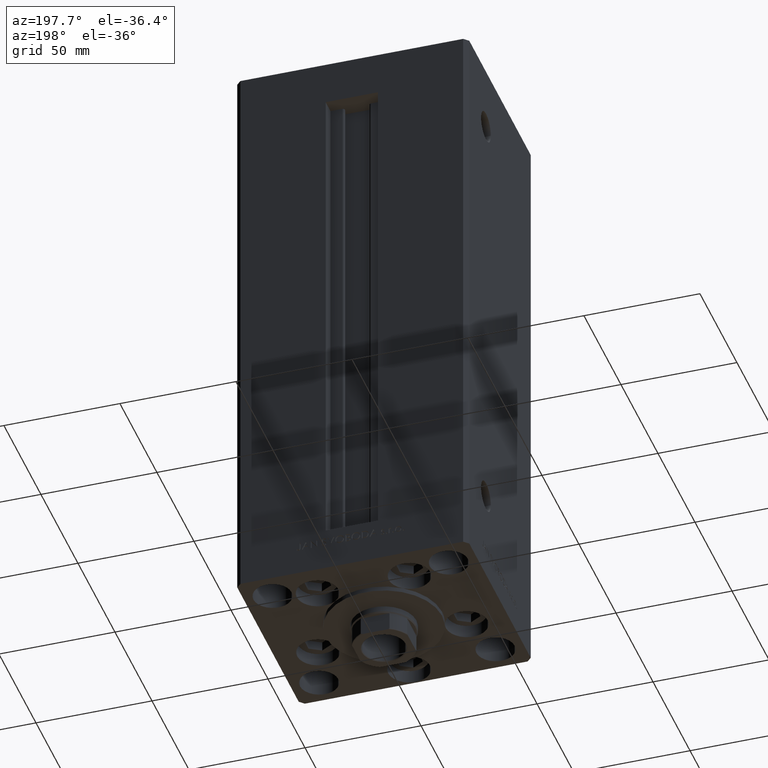
[diagram: clean part render]
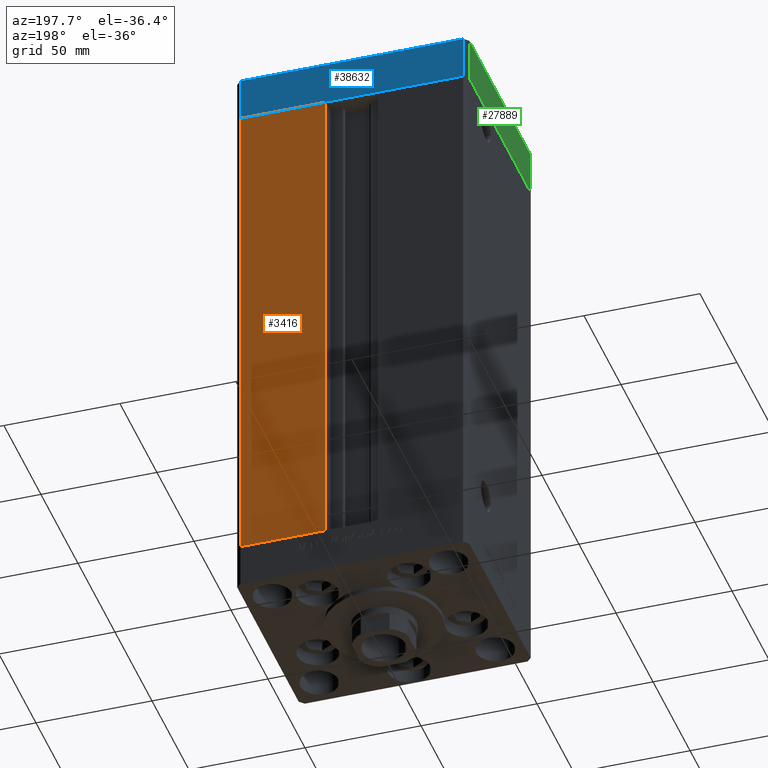
[diagram: same view with three faces highlighted in distinct colors, each labeled with its STEP entity id]
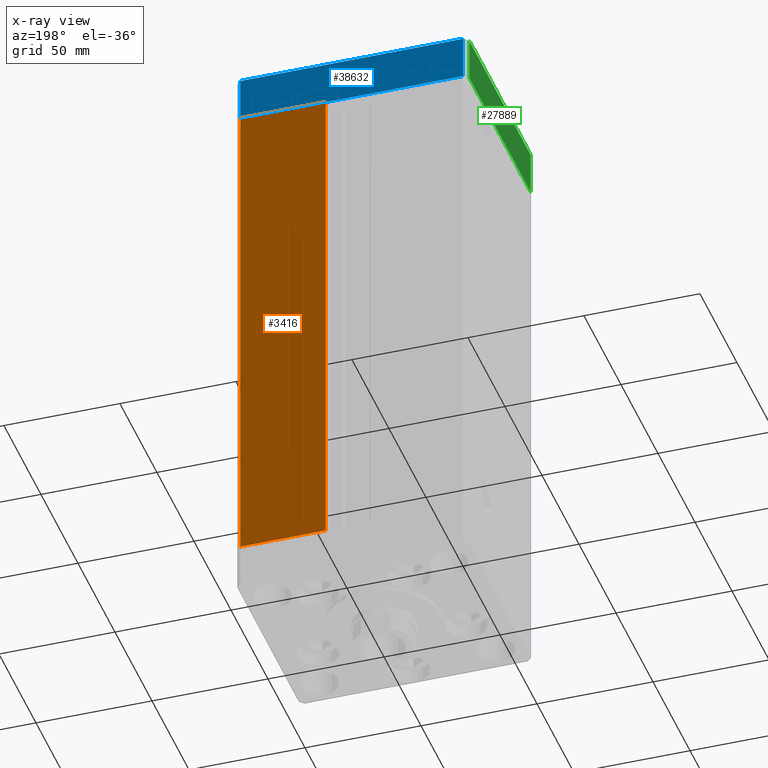
[diagram: x-ray of the same camera — body ghosted, the three highlighted faces saturated]
A machine part, auxiliary view with three faces highlighted in distinct colors.
The next image is the same camera in x-ray (body ghosted, the three faces saturated) — at least one of them is partly hidden behind the body in this view.
Their STEP definitions:

[orange] entity #3416 — the highlighted planar face has unit normal (0, -1, 0).
#628 = DIRECTION ( 'NONE',  ( 1.000000000000000000, 0.000000000000000000, 0.000000000000000000 ) ) ;
#1307 = LINE ( 'NONE', #13210, #27316 ) ;
#1503 = CARTESIAN_POINT ( 'NONE',  ( 11.24999999999999112, 43.50000000000000000, 218.5000000000000000 ) ) ;
#2553 = VERTEX_POINT ( 'NONE', #15337 ) ;
#2596 = EDGE_CURVE ( 'NONE', #3157, #2553, #34590, .T. ) ;
#3157 = VERTEX_POINT ( 'NONE', #32489 ) ;
#3416 = ADVANCED_FACE ( 'NONE', ( #47566 ), #12850, .F. ) ;
#4290 = EDGE_CURVE ( 'NONE', #11338, #34736, #1307, .T. ) ;
#4430 = CARTESIAN_POINT ( 'NONE',  ( -11.24999999999999822, 43.50000000000000000, 218.5000000000000000 ) ) ;
#4508 = DIRECTION ( 'NONE',  ( 0.000000000000000000, -0.000000000000000000, -1.000000000000000000 ) ) ;
#5861 = DIRECTION ( 'NONE',  ( -0.000000000000000000, -0.000000000000000000, 1.000000000000000000 ) ) ;
#5899 = VECTOR ( 'NONE', #628, 1000.000000000000000 ) ;
#5952 = LINE ( 'NONE', #9242, #49955 ) ;
#7929 = EDGE_CURVE ( 'NONE', #2553, #11338, #5952, .T. ) ;
#9242 = CARTESIAN_POINT ( 'NONE',  ( -11.24999999999999822, 43.50000000000000000, 0.000000000000000000 ) ) ;
#10246 = VECTOR ( 'NONE', #26988, 1000.000000000000000 ) ;
#11338 = VERTEX_POINT ( 'NONE', #38930 ) ;
#12850 = PLANE ( 'NONE',  #16758 ) ;
#13210 = CARTESIAN_POINT ( 'NONE',  ( 11.24999999999999822, 43.50000000000000000, 0.000000000000000000 ) ) ;
#14871 = ORIENTED_EDGE ( 'NONE', *, *, #31813, .T. ) ;
#15337 = CARTESIAN_POINT ( 'NONE',  ( 48.00000000000000711, 43.50000000000000000, 0.000000000000000000 ) ) ;
#16387 = ORIENTED_EDGE ( 'NONE', *, *, #7929, .T. ) ;
#16758 = AXIS2_PLACEMENT_3D ( 'NONE', #47074, #36167, #4508 ) ;
#26988 = DIRECTION ( 'NONE',  ( -0.000000000000000000, -0.000000000000000000, -1.000000000000000000 ) ) ;
#27316 = VECTOR ( 'NONE', #5861, 1000.000000000000000 ) ;
#30512 = ORIENTED_EDGE ( 'NONE', *, *, #4290, .T. ) ;
#30794 = CARTESIAN_POINT ( 'NONE',  ( 48.00000000000000711, 43.50000000000000000, 218.5000000000000000 ) ) ;
#31813 = EDGE_CURVE ( 'NONE', #34736, #3157, #35320, .T. ) ;
#32489 = CARTESIAN_POINT ( 'NONE',  ( 48.00000000000000711, 43.50000000000000000, 218.5000000000000000 ) ) ;
#34590 = LINE ( 'NONE', #30794, #10246 ) ;
#34736 = VERTEX_POINT ( 'NONE', #1503 ) ;
#35320 = LINE ( 'NONE', #4430, #5899 ) ;
#36146 = EDGE_LOOP ( 'NONE', ( #16387, #30512, #14871, #42653 ) ) ;
#36167 = DIRECTION ( 'NONE',  ( 0.000000000000000000, -1.000000000000000000, 0.000000000000000000 ) ) ;
#38930 = CARTESIAN_POINT ( 'NONE',  ( 11.24999999999999822, 43.50000000000000000, 0.000000000000000000 ) ) ;
#42653 = ORIENTED_EDGE ( 'NONE', *, *, #2596, .T. ) ;
#44229 = DIRECTION ( 'NONE',  ( -1.000000000000000000, 0.000000000000000000, 0.000000000000000000 ) ) ;
#47074 = CARTESIAN_POINT ( 'NONE',  ( -11.24999999999999822, 43.50000000000000000, 218.5000000000000000 ) ) ;
#47566 = FACE_OUTER_BOUND ( 'NONE', #36146, .T. ) ;
#49955 = VECTOR ( 'NONE', #44229, 1000.000000000000000 ) ;

[blue] entity #38632 — the highlighted planar face has unit normal (-0, 1, 0).
#32 = DIRECTION ( 'NONE',  ( 0.000000000000000000, 0.000000000000000000, 1.000000000000000000 ) ) ;
#1328 = EDGE_CURVE ( 'NONE', #31632, #15303, #5542, .T. ) ;
#4565 = CARTESIAN_POINT ( 'NONE',  ( 47.99999999999990763, 43.50000000000000000, -19.00000000000000000 ) ) ;
#4774 = CARTESIAN_POINT ( 'NONE',  ( -48.00000000000000711, 43.49999999999996447, -19.00000000000000000 ) ) ;
#5478 = CARTESIAN_POINT ( 'NONE',  ( 47.99999999999990763, 43.50000000000000000, 0.000000000000000000 ) ) ;
#5542 = LINE ( 'NONE', #6044, #40966 ) ;
#6044 = CARTESIAN_POINT ( 'NONE',  ( 47.99999999999990763, 43.50000000000000000, 0.000000000000000000 ) ) ;
#7637 = VECTOR ( 'NONE', #47849, 1000.000000000000000 ) ;
#9793 = VERTEX_POINT ( 'NONE', #33616 ) ;
#11000 = CARTESIAN_POINT ( 'NONE',  ( -48.00000000000000711, 43.49999999999996447, -19.00000000000000000 ) ) ;
#15303 = VERTEX_POINT ( 'NONE', #27026 ) ;
#16126 = CARTESIAN_POINT ( 'NONE',  ( 47.99999999999990763, 43.50000000000000000, -19.00000000000000000 ) ) ;
#16224 = FACE_OUTER_BOUND ( 'NONE', #34126, .T. ) ;
#16315 = EDGE_CURVE ( 'NONE', #9793, #40812, #23479, .T. ) ;
#17220 = DIRECTION ( 'NONE',  ( -1.000000000000000000, -3.614007241618350743E-16, 0.000000000000000000 ) ) ;
#19786 = ORIENTED_EDGE ( 'NONE', *, *, #16315, .T. ) ;
#22196 = AXIS2_PLACEMENT_3D ( 'NONE', #4565, #47630, #17220 ) ;
#23479 = LINE ( 'NONE', #16126, #42987 ) ;
#24315 = PLANE ( 'NONE',  #22196 ) ;
#27026 = CARTESIAN_POINT ( 'NONE',  ( -48.00000000000000711, 43.49999999999996447, 0.000000000000000000 ) ) ;
#27505 = EDGE_CURVE ( 'NONE', #9793, #31632, #39517, .T. ) ;
#30457 = ORIENTED_EDGE ( 'NONE', *, *, #27505, .F. ) ;
#31632 = VERTEX_POINT ( 'NONE', #5478 ) ;
#32045 = ORIENTED_EDGE ( 'NONE', *, *, #1328, .F. ) ;
#32404 = DIRECTION ( 'NONE',  ( -1.000000000000000000, -3.614007241618350743E-16, 0.000000000000000000 ) ) ;
#33616 = CARTESIAN_POINT ( 'NONE',  ( 47.99999999999990763, 43.50000000000000000, -19.00000000000000000 ) ) ;
#34126 = EDGE_LOOP ( 'NONE', ( #32045, #30457, #19786, #38950 ) ) ;
#35213 = CARTESIAN_POINT ( 'NONE',  ( 47.99999999999990763, 43.50000000000000000, -19.00000000000000000 ) ) ;
#36133 = DIRECTION ( 'NONE',  ( -1.000000000000000000, -3.614007241618350743E-16, 0.000000000000000000 ) ) ;
#38632 = ADVANCED_FACE ( 'NONE', ( #16224 ), #24315, .T. ) ;
#38950 = ORIENTED_EDGE ( 'NONE', *, *, #40301, .T. ) ;
#39517 = LINE ( 'NONE', #35213, #42136 ) ;
#40301 = EDGE_CURVE ( 'NONE', #40812, #15303, #43549, .T. ) ;
#40812 = VERTEX_POINT ( 'NONE', #11000 ) ;
#40966 = VECTOR ( 'NONE', #32404, 1000.000000000000000 ) ;
#42136 = VECTOR ( 'NONE', #32, 1000.000000000000000 ) ;
#42987 = VECTOR ( 'NONE', #36133, 1000.000000000000000 ) ;
#43549 = LINE ( 'NONE', #4774, #7637 ) ;
#47630 = DIRECTION ( 'NONE',  ( -3.614007241618350743E-16, 1.000000000000000000, 0.000000000000000000 ) ) ;
#47849 = DIRECTION ( 'NONE',  ( 0.000000000000000000, 0.000000000000000000, 1.000000000000000000 ) ) ;

[green] entity #27889 — the highlighted planar face has unit normal (-1, -0, 0).
#333 = DIRECTION ( 'NONE',  ( 0.000000000000000000, 0.000000000000000000, 1.000000000000000000 ) ) ;
#1149 = CARTESIAN_POINT ( 'NONE',  ( -50.00000000000000711, 41.49999999999995026, 0.000000000000000000 ) ) ;
#2029 = LINE ( 'NONE', #49124, #20003 ) ;
#4253 = FACE_OUTER_BOUND ( 'NONE', #20099, .T. ) ;
#4948 = DIRECTION ( 'NONE',  ( 8.360113137237628665E-17, -1.000000000000000000, 0.000000000000000000 ) ) ;
#5150 = VECTOR ( 'NONE', #333, 1000.000000000000000 ) ;
#7376 = EDGE_CURVE ( 'NONE', #50054, #18719, #2029, .T. ) ;
#8682 = EDGE_CURVE ( 'NONE', #15360, #23134, #24202, .T. ) ;
#11360 = ORIENTED_EDGE ( 'NONE', *, *, #7376, .T. ) ;
#12256 = CARTESIAN_POINT ( 'NONE',  ( -50.00000000000000000, -41.50000000000000000, -19.00000000000000000 ) ) ;
#14678 = ORIENTED_EDGE ( 'NONE', *, *, #34391, .T. ) ;
#15360 = VERTEX_POINT ( 'NONE', #22976 ) ;
#17791 = CARTESIAN_POINT ( 'NONE',  ( -50.00000000000000000, -41.50000000000000000, 0.000000000000000000 ) ) ;
#18719 = VERTEX_POINT ( 'NONE', #12256 ) ;
#20003 = VECTOR ( 'NONE', #37738, 1000.000000000000000 ) ;
#20069 = CARTESIAN_POINT ( 'NONE',  ( -50.00000000000000711, 41.49999999999995026, -19.00000000000000000 ) ) ;
#20099 = EDGE_LOOP ( 'NONE', ( #45826, #39782, #11360, #14678 ) ) ;
#21380 = VECTOR ( 'NONE', #24867, 1000.000000000000000 ) ;
#22976 = CARTESIAN_POINT ( 'NONE',  ( -50.00000000000000711, 41.49999999999995026, 0.000000000000000000 ) ) ;
#23134 = VERTEX_POINT ( 'NONE', #17791 ) ;
#23251 = PLANE ( 'NONE',  #36538 ) ;
#24202 = LINE ( 'NONE', #1149, #25713 ) ;
#24867 = DIRECTION ( 'NONE',  ( 0.000000000000000000, 0.000000000000000000, 1.000000000000000000 ) ) ;
#25713 = VECTOR ( 'NONE', #4948, 1000.000000000000000 ) ;
#27552 = DIRECTION ( 'NONE',  ( -1.000000000000000000, -8.360113137237628665E-17, 0.000000000000000000 ) ) ;
#27889 = ADVANCED_FACE ( 'NONE', ( #4253 ), #23251, .T. ) ;
#34391 = EDGE_CURVE ( 'NONE', #18719, #23134, #44145, .T. ) ;
#35020 = LINE ( 'NONE', #20069, #5150 ) ;
#36538 = AXIS2_PLACEMENT_3D ( 'NONE', #46581, #27552, #38715 ) ;
#37738 = DIRECTION ( 'NONE',  ( 8.360113137237628665E-17, -1.000000000000000000, 0.000000000000000000 ) ) ;
#38189 = EDGE_CURVE ( 'NONE', #50054, #15360, #35020, .T. ) ;
#38715 = DIRECTION ( 'NONE',  ( 8.360113137237628665E-17, -1.000000000000000000, 0.000000000000000000 ) ) ;
#39782 = ORIENTED_EDGE ( 'NONE', *, *, #38189, .F. ) ;
#43751 = CARTESIAN_POINT ( 'NONE',  ( -50.00000000000000711, 41.49999999999995026, -19.00000000000000000 ) ) ;
#44145 = LINE ( 'NONE', #44390, #21380 ) ;
#44390 = CARTESIAN_POINT ( 'NONE',  ( -50.00000000000000000, -41.50000000000000000, -19.00000000000000000 ) ) ;
#45826 = ORIENTED_EDGE ( 'NONE', *, *, #8682, .F. ) ;
#46581 = CARTESIAN_POINT ( 'NONE',  ( -50.00000000000000711, 41.49999999999995026, -19.00000000000000000 ) ) ;
#49124 = CARTESIAN_POINT ( 'NONE',  ( -50.00000000000000711, 41.49999999999995026, -19.00000000000000000 ) ) ;
#50054 = VERTEX_POINT ( 'NONE', #43751 ) ;